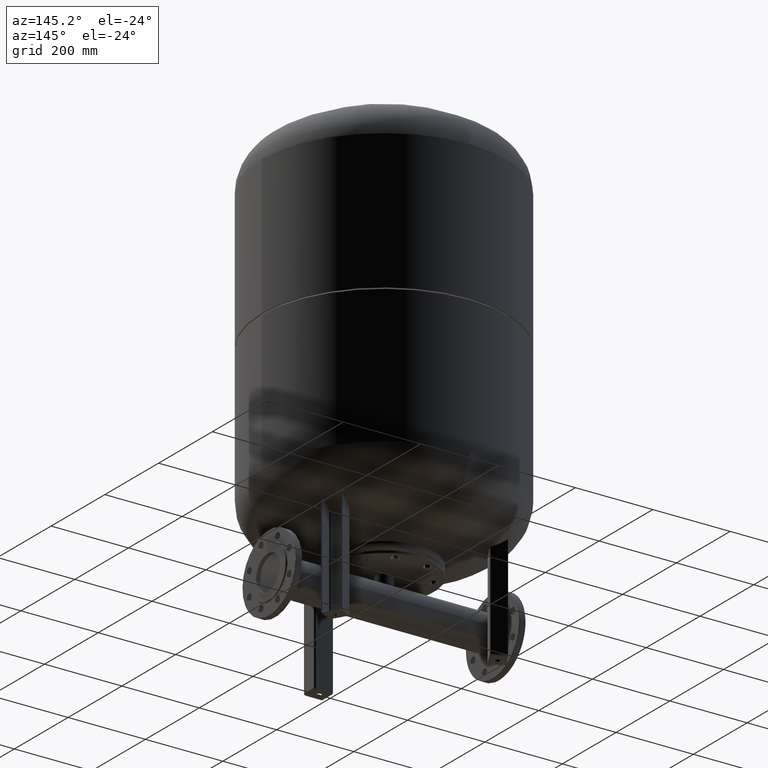
[diagram: clean part render]
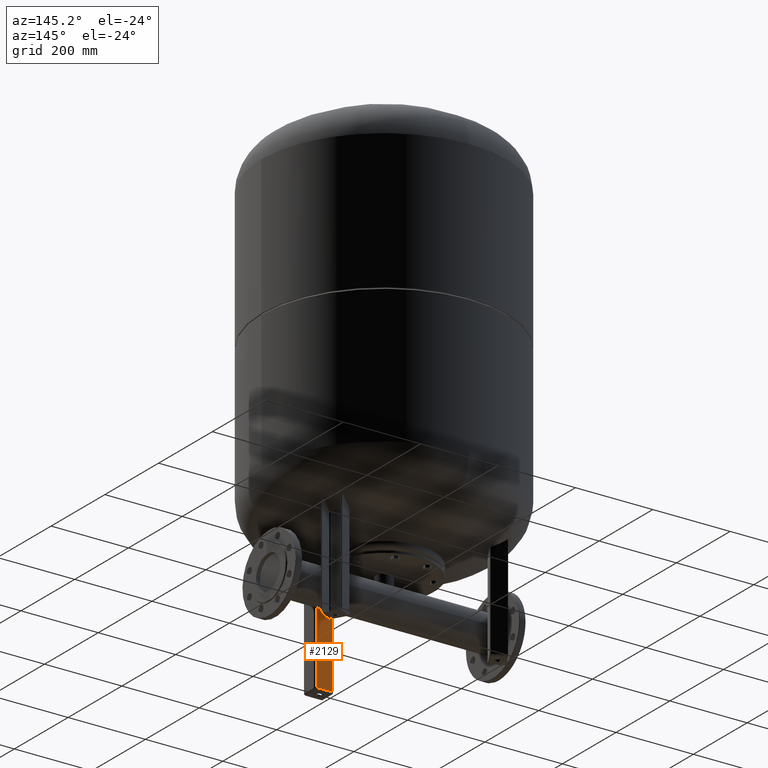
[diagram: same view with one face highlighted and labeled with its STEP entity id]
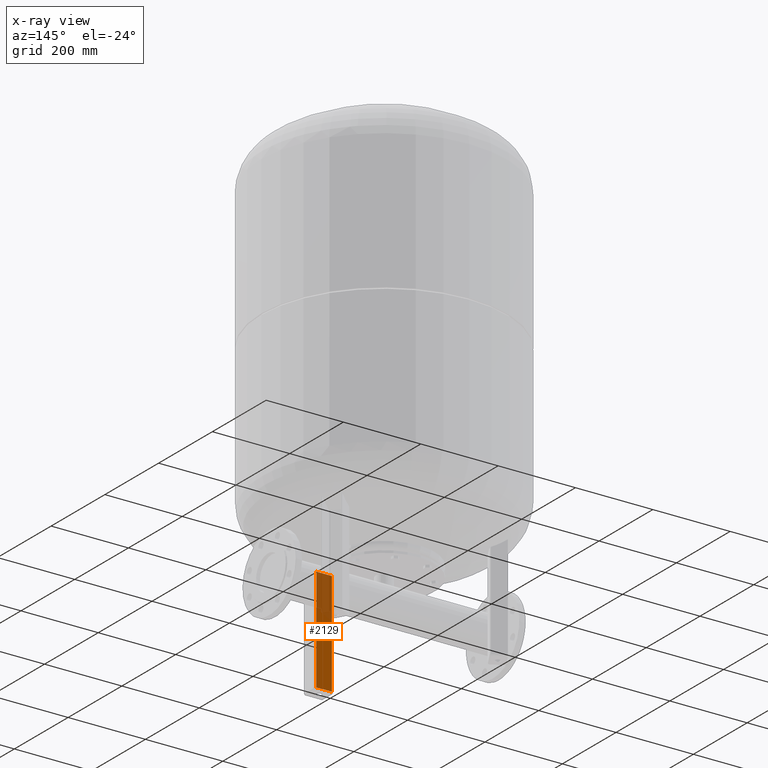
[diagram: x-ray of the same camera — body ghosted, the highlighted face saturated]
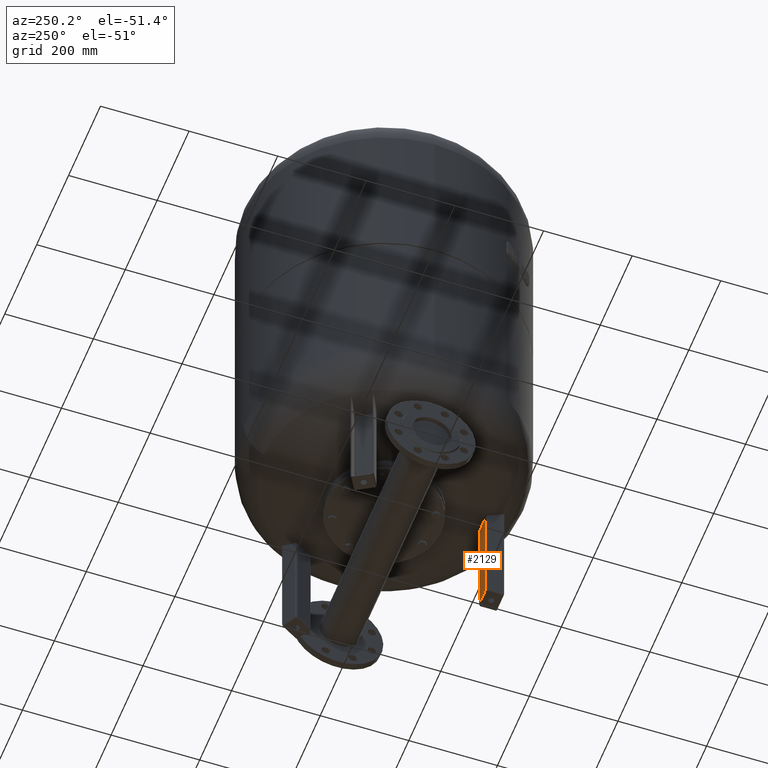
[diagram: same view with one face highlighted and labeled with its STEP entity id]
A machine part, auxiliary view. The second image highlights one B-rep face of the part: STEP entity #2129.
The next image is the same camera in x-ray: the body ghosted, the highlighted face saturated — about 35% of this face is hidden behind the body in this view.
A second angle (auxiliary view) of the same face is appended — the face is thin or edge-on in the first view.
In plain terms, the highlighted planar face has unit normal (0, 1, 0).
Its self-contained STEP definition (entity closure, byte-faithful):
#1349=CARTESIAN_POINT('',(20.000000000000004,-222.500000000000000,274.0));
#1350=VERTEX_POINT('',#1349);
#1358=CARTESIAN_POINT('',(-19.999999999999996,-222.500000000000000,274.0));
#1359=VERTEX_POINT('',#1358);
#1360=CARTESIAN_POINT('',(-19.999999999999996,-222.500000000000000,274.0));
#1361=DIRECTION('',(1.0,0.0,0.0));
#1362=VECTOR('',#1361,40.0);
#1363=LINE('',#1360,#1362);
#1364=EDGE_CURVE('',#1359,#1350,#1363,.T.);
#1994=CARTESIAN_POINT('',(-20.0,-222.500000000000000,4.999999999999996));
#1995=VERTEX_POINT('',#1994);
#2003=CARTESIAN_POINT('',(20.0,-222.500000000000000,5.000000000000004));
#2004=VERTEX_POINT('',#2003);
#2005=CARTESIAN_POINT('',(-20.0,-222.500000000000000,4.999999999999996));
#2006=DIRECTION('',(1.0,0.0,0.0));
#2007=VECTOR('',#2006,40.0);
#2008=LINE('',#2005,#2007);
#2009=EDGE_CURVE('',#1995,#2004,#2008,.T.);
#2097=CARTESIAN_POINT('',(20.0,-222.500000000000000,5.000000000000004));
#2098=DIRECTION('',(0.0,0.0,1.0));
#2099=VECTOR('',#2098,269.0);
#2100=LINE('',#2097,#2099);
#2101=EDGE_CURVE('',#2004,#1350,#2100,.T.);
#2113=CARTESIAN_POINT('',(-25.0,-222.500000000000000,-4.592425E-015));
#2114=DIRECTION('',(0.0,1.0,0.0));
#2115=DIRECTION('',(-1.0,0.0,0.0));
#2116=AXIS2_PLACEMENT_3D('',#2113,#2114,#2115);
#2117=PLANE('',#2116);
#2118=ORIENTED_EDGE('',*,*,#2009,.F.);
#2119=CARTESIAN_POINT('',(-20.0,-222.500000000000000,4.999999999999996));
#2120=DIRECTION('',(0.0,0.0,1.0));
#2121=VECTOR('',#2120,269.0);
#2122=LINE('',#2119,#2121);
#2123=EDGE_CURVE('',#1995,#1359,#2122,.T.);
#2124=ORIENTED_EDGE('',*,*,#2123,.T.);
#2125=ORIENTED_EDGE('',*,*,#1364,.T.);
#2126=ORIENTED_EDGE('',*,*,#2101,.F.);
#2127=EDGE_LOOP('',(#2118,#2124,#2125,#2126));
#2128=FACE_OUTER_BOUND('',#2127,.T.);
#2129=ADVANCED_FACE('',(#2128),#2117,.T.);